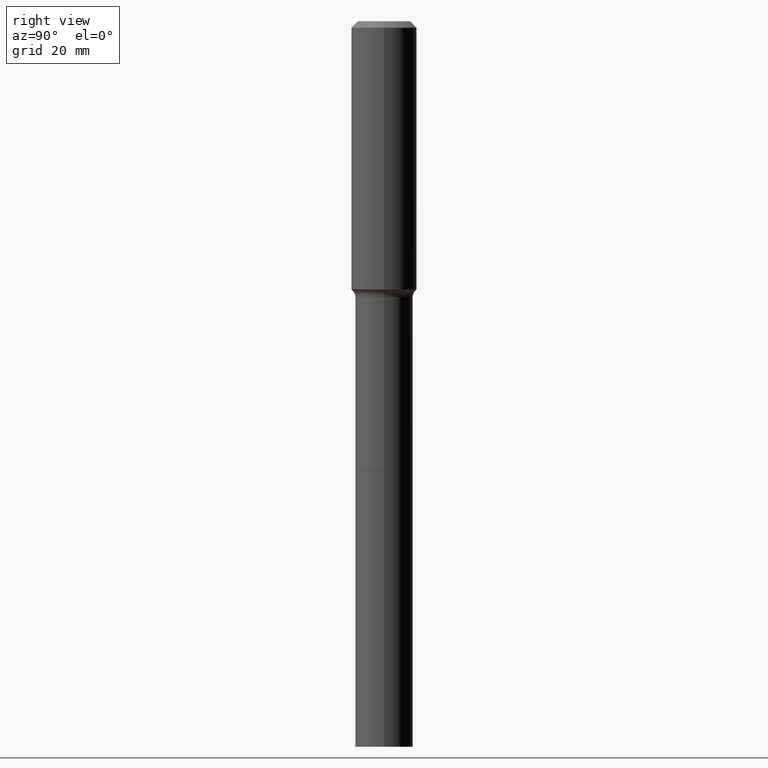
[diagram: clean part render]
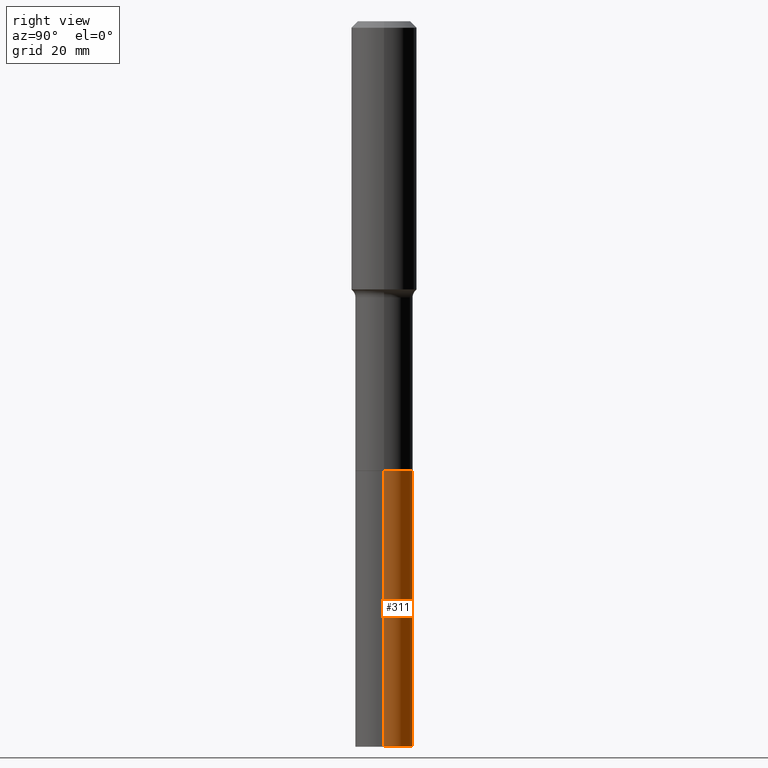
[diagram: same view with one face highlighted and labeled with its STEP entity id]
A machine part, right view. The second image highlights one B-rep face of the part: STEP entity #311.
In plain terms, the highlighted cylindrical surface (edge-blend (fillet) strip) has radius 6.1519 mm, axis along (-0, 0, 1).
Its self-contained STEP definition (entity closure, byte-faithful):
#24 = EDGE_CURVE ( 'NONE', #208, #455, #175, .T. ) ;
#50 = DIRECTION ( 'NONE',  ( -2.445468806185136597E-29, 3.491481338843145583E-15, 1.000000000000000000 ) ) ;
#56 = CARTESIAN_POINT ( 'NONE',  ( 0.2422000000000000264, -1.488697813255939601E-14, -3.779399999999999427 ) ) ;
#62 = CIRCLE ( 'NONE', #483, 0.2422000000000000264 ) ;
#69 = CARTESIAN_POINT ( 'NONE',  ( 0.2422000000000000264, -2.299768928269202503E-14, -6.102400000000000269 ) ) ;
#73 = VERTEX_POINT ( 'NONE', #423 ) ;
#79 = VERTEX_POINT ( 'NONE', #69 ) ;
#83 = DIRECTION ( 'NONE',  ( 1.000000000000000000, -6.982962677686265922E-15, 0.000000000000000000 ) ) ;
#88 = DIRECTION ( 'NONE',  ( 1.000000000000000000, -6.982962677686265922E-15, 0.000000000000000000 ) ) ;
#121 = CARTESIAN_POINT ( 'NONE',  ( 9.242404806096105288E-29, -1.319570457202378340E-14, -3.779399999999999427 ) ) ;
#126 = VECTOR ( 'NONE', #207, 39.37007874015748143 ) ;
#150 = FACE_OUTER_BOUND ( 'NONE', #464, .T. ) ;
#157 = DIRECTION ( 'NONE',  ( -2.445468806185136597E-29, 3.491481338843145583E-15, 1.000000000000000000 ) ) ;
#171 = VECTOR ( 'NONE', #489, 39.37007874015748143 ) ;
#175 = CIRCLE ( 'NONE', #472, 0.2422000000000000264 ) ;
#180 = ORIENTED_EDGE ( 'NONE', *, *, #433, .F. ) ;
#207 = DIRECTION ( 'NONE',  ( -2.445468806185136877E-29, 3.491481338843145188E-15, 1.000000000000000000 ) ) ;
#208 = VERTEX_POINT ( 'NONE', #397 ) ;
#259 = ORIENTED_EDGE ( 'NONE', *, *, #24, .F. ) ;
#283 = ORIENTED_EDGE ( 'NONE', *, *, #466, .T. ) ;
#308 = CARTESIAN_POINT ( 'NONE',  ( 9.242404806096105288E-29, -1.319570457202378340E-14, -3.779399999999999427 ) ) ;
#311 = ADVANCED_FACE ( 'NONE', ( #150 ), #509, .T. ) ;
#323 = CARTESIAN_POINT ( 'NONE',  ( -0.2422000000000000264, -1.553012564107913704E-14, -3.779399999999999427 ) ) ;
#328 = LINE ( 'NONE', #335, #126 ) ;
#331 = LINE ( 'NONE', #56, #171 ) ;
#335 = CARTESIAN_POINT ( 'NONE',  ( -0.2422000000000000264, -1.147477006601282096E-14, -3.779399999999999427 ) ) ;
#363 = DIRECTION ( 'NONE',  ( 1.000000000000000000, -6.982962677686265922E-15, 0.000000000000000000 ) ) ;
#397 = CARTESIAN_POINT ( 'NONE',  ( 0.2422000000000000264, -1.488697813255939601E-14, -3.779399999999999427 ) ) ;
#423 = CARTESIAN_POINT ( 'NONE',  ( -0.2422000000000000264, -1.553012564107913704E-14, -6.102400000000000269 ) ) ;
#433 = EDGE_CURVE ( 'NONE', #79, #208, #331, .T. ) ;
#436 = AXIS2_PLACEMENT_3D ( 'NONE', #308, #453, #88 ) ;
#446 = CARTESIAN_POINT ( 'NONE',  ( 1.492322884286417914E-28, -2.130641572215641241E-14, -6.102400000000000269 ) ) ;
#453 = DIRECTION ( 'NONE',  ( -2.445468806185136597E-29, 3.491481338843145583E-15, 1.000000000000000000 ) ) ;
#455 = VERTEX_POINT ( 'NONE', #323 ) ;
#464 = EDGE_LOOP ( 'NONE', ( #283, #488, #259, #180 ) ) ;
#466 = EDGE_CURVE ( 'NONE', #79, #73, #62, .T. ) ;
#472 = AXIS2_PLACEMENT_3D ( 'NONE', #121, #157, #83 ) ;
#483 = AXIS2_PLACEMENT_3D ( 'NONE', #446, #50, #363 ) ;
#488 = ORIENTED_EDGE ( 'NONE', *, *, #508, .T. ) ;
#489 = DIRECTION ( 'NONE',  ( -2.445468806185136877E-29, 3.491481338843145188E-15, 1.000000000000000000 ) ) ;
#508 = EDGE_CURVE ( 'NONE', #73, #455, #328, .T. ) ;
#509 = CYLINDRICAL_SURFACE ( 'NONE', #436, 0.2422000000000000264 ) ;